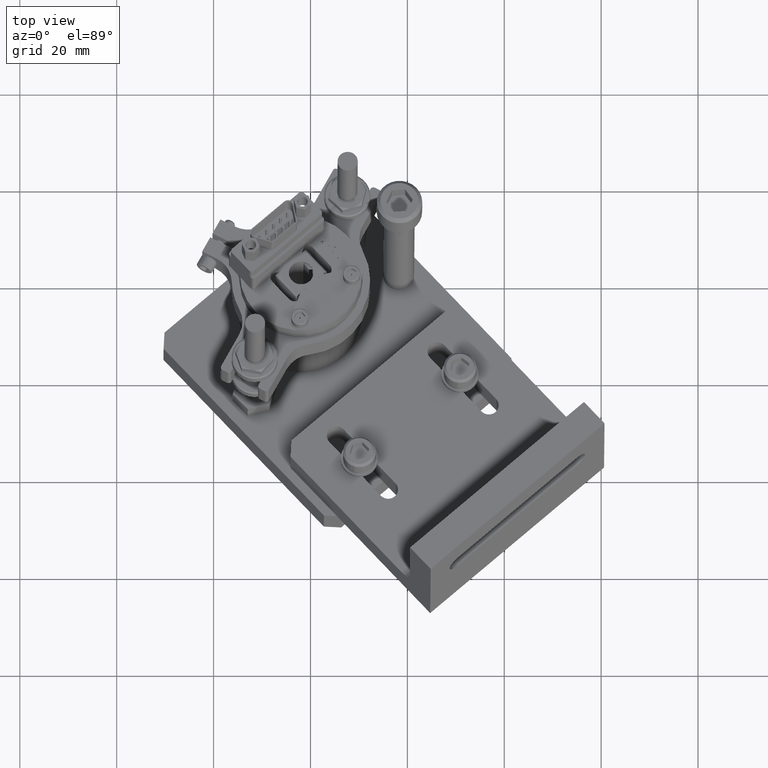
[diagram: clean part render]
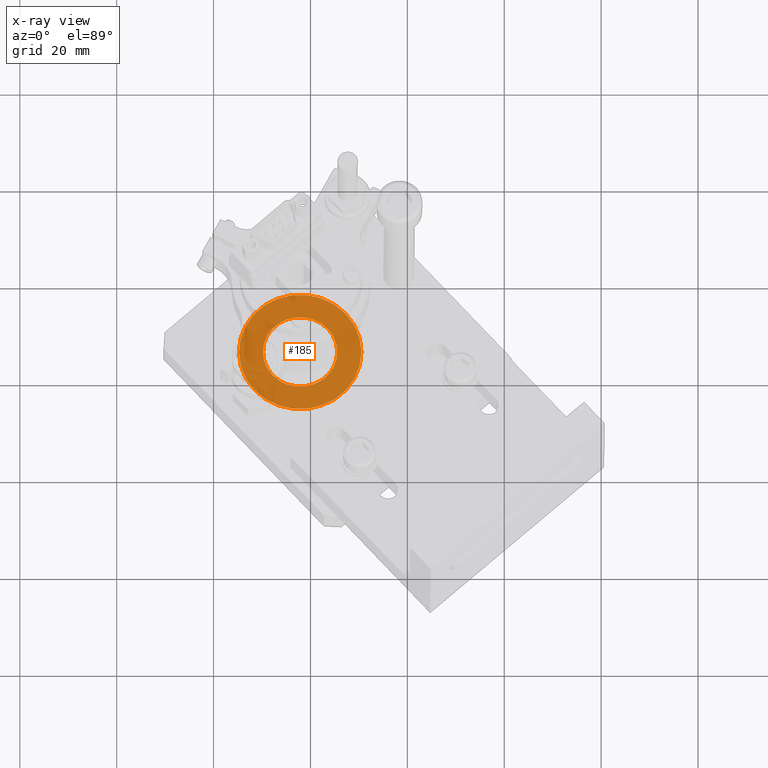
[diagram: x-ray — body ghosted, one internal face saturated and labeled with its STEP entity id]
A machine part, top view, then the same camera in x-ray: the body is ghosted and one INTERNAL B-rep face — a face not visible from any outside direction — is saturated and labeled: STEP entity #185.
In plain terms, the highlighted planar face has unit normal (-0.0041, -0.3425, -0.9395).
Its self-contained STEP definition (entity closure, byte-faithful):
#185 = ADVANCED_FACE ( 'NONE', ( #18764, #18765 ), #19383, .F. ) ;
#537 = EDGE_CURVE ( 'NONE', #16356, #16355, #20693, .T. ) ;
#623 = EDGE_CURVE ( 'NONE', #16355, #16356, #20768, .T. ) ;
#624 = EDGE_CURVE ( 'NONE', #16370, #16373, #20769, .T. ) ;
#625 = EDGE_CURVE ( 'NONE', #16373, #16370, #20770, .T. ) ;
#998 = ORIENTED_EDGE ( 'NONE', *, *, #537, .F. ) ;
#999 = ORIENTED_EDGE ( 'NONE', *, *, #623, .F. ) ;
#1000 = ORIENTED_EDGE ( 'NONE', *, *, #624, .F. ) ;
#1001 = ORIENTED_EDGE ( 'NONE', *, *, #625, .F. ) ;
#11786 = CARTESIAN_POINT ( 'NONE',  ( -0.4695154141997984800, -0.09096465124174728200, 0.8924652816767824100 ) ) ;
#11787 = CARTESIAN_POINT ( 'NONE',  ( 0.5264845858002015200, -0.09096465124174735200, 0.8924652816767824100 ) ) ;
#11801 = CARTESIAN_POINT ( 'NONE',  ( 0.3304845858002014600, -0.09096465124174735200, 0.8924652816767824100 ) ) ;
#11804 = CARTESIAN_POINT ( 'NONE',  ( -0.2735154141997984700, -0.09096465124174731000, 0.8924652816767824100 ) ) ;
#13458 = EDGE_LOOP ( 'NONE', ( #1000, #1001 ) ) ;
#13462 = EDGE_LOOP ( 'NONE', ( #998, #999 ) ) ;
#16355 = VERTEX_POINT ( 'NONE', #11786 ) ;
#16356 = VERTEX_POINT ( 'NONE', #11787 ) ;
#16370 = VERTEX_POINT ( 'NONE', #11801 ) ;
#16373 = VERTEX_POINT ( 'NONE', #11804 ) ;
#17342 = AXIS2_PLACEMENT_3D ( 'NONE', #19384, #19385, #19386 ) ;
#17543 = AXIS2_PLACEMENT_3D ( 'NONE', #22026, #22027, #22028 ) ;
#17545 = AXIS2_PLACEMENT_3D ( 'NONE', #22859, #22860, #22861 ) ;
#17546 = AXIS2_PLACEMENT_3D ( 'NONE', #22862, #22863, #22864 ) ;
#17547 = AXIS2_PLACEMENT_3D ( 'NONE', #22865, #22866, #22867 ) ;
#18764 = FACE_OUTER_BOUND ( 'NONE', #13462, .T. ) ;
#18765 = FACE_BOUND ( 'NONE', #13458, .T. ) ;
#19383 = PLANE ( 'NONE',  #17342 ) ;
#19384 = CARTESIAN_POINT ( 'NONE',  ( 0.02848458580020153700, -0.09096465124174735200, 0.8924652816767824100 ) ) ;
#19385 = DIRECTION ( 'NONE',  ( 0.0000000000000000000, 0.0000000000000000000, 1.000000000000000000 ) ) ;
#19386 = DIRECTION ( 'NONE',  ( 1.000000000000000000, 0.0000000000000000000, -0.0000000000000000000 ) ) ;
#20693 = CIRCLE ( 'NONE', #17543, 0.4980000000000000000 ) ;
#20768 = CIRCLE ( 'NONE', #17545, 0.4980000000000000000 ) ;
#20769 = CIRCLE ( 'NONE', #17546, 0.3019999999999999400 ) ;
#20770 = CIRCLE ( 'NONE', #17547, 0.3019999999999999400 ) ;
#22026 = CARTESIAN_POINT ( 'NONE',  ( 0.02848458580020153700, -0.09096465124174735200, 0.8924652816767824100 ) ) ;
#22027 = DIRECTION ( 'NONE',  ( 0.0000000000000000000, 0.0000000000000000000, 1.000000000000000000 ) ) ;
#22028 = DIRECTION ( 'NONE',  ( 1.000000000000000000, 0.0000000000000000000, 0.0000000000000000000 ) ) ;
#22859 = CARTESIAN_POINT ( 'NONE',  ( 0.02848458580020153700, -0.09096465124174735200, 0.8924652816767824100 ) ) ;
#22860 = DIRECTION ( 'NONE',  ( 0.0000000000000000000, 0.0000000000000000000, 1.000000000000000000 ) ) ;
#22861 = DIRECTION ( 'NONE',  ( 1.000000000000000000, 0.0000000000000000000, 0.0000000000000000000 ) ) ;
#22862 = CARTESIAN_POINT ( 'NONE',  ( 0.02848458580020153700, -0.09096465124174735200, 0.8924652816767824100 ) ) ;
#22863 = DIRECTION ( 'NONE',  ( -0.0000000000000000000, -0.0000000000000000000, -1.000000000000000000 ) ) ;
#22864 = DIRECTION ( 'NONE',  ( 1.000000000000000000, 0.0000000000000000000, 0.0000000000000000000 ) ) ;
#22865 = CARTESIAN_POINT ( 'NONE',  ( 0.02848458580020153700, -0.09096465124174735200, 0.8924652816767824100 ) ) ;
#22866 = DIRECTION ( 'NONE',  ( -0.0000000000000000000, -0.0000000000000000000, -1.000000000000000000 ) ) ;
#22867 = DIRECTION ( 'NONE',  ( 1.000000000000000000, 0.0000000000000000000, 0.0000000000000000000 ) ) ;